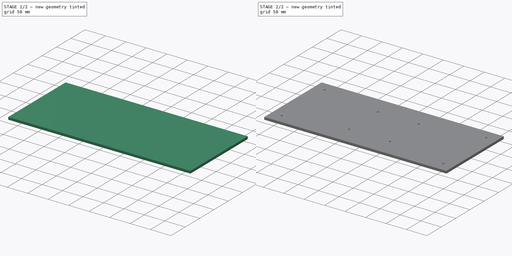
[diagram: build sequence overview — one tinted view per stage of 2, left to right]
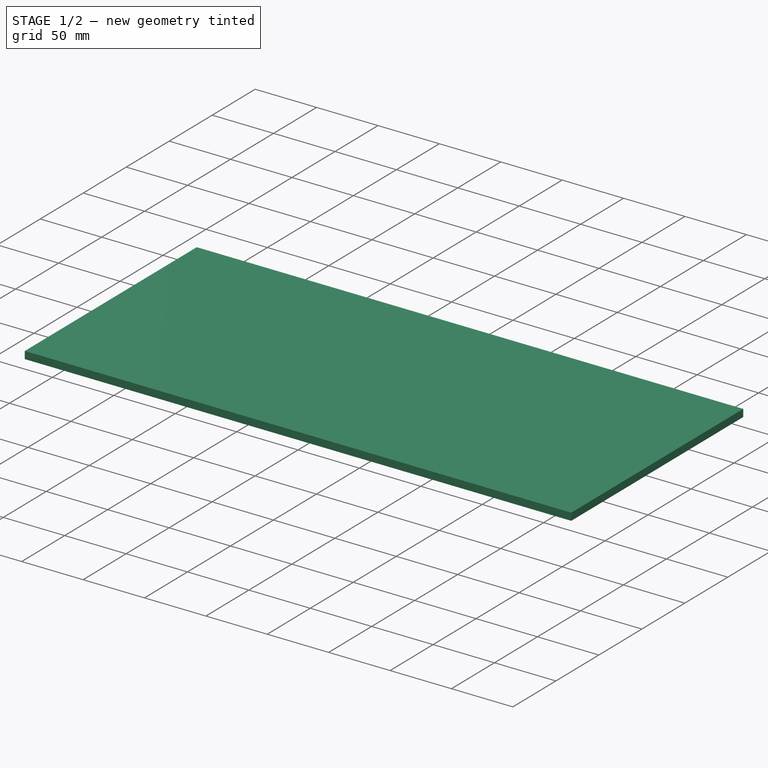
[diagram: stage 1 of 2 — iso view after this stage's code; geometry added in this stage tinted green]
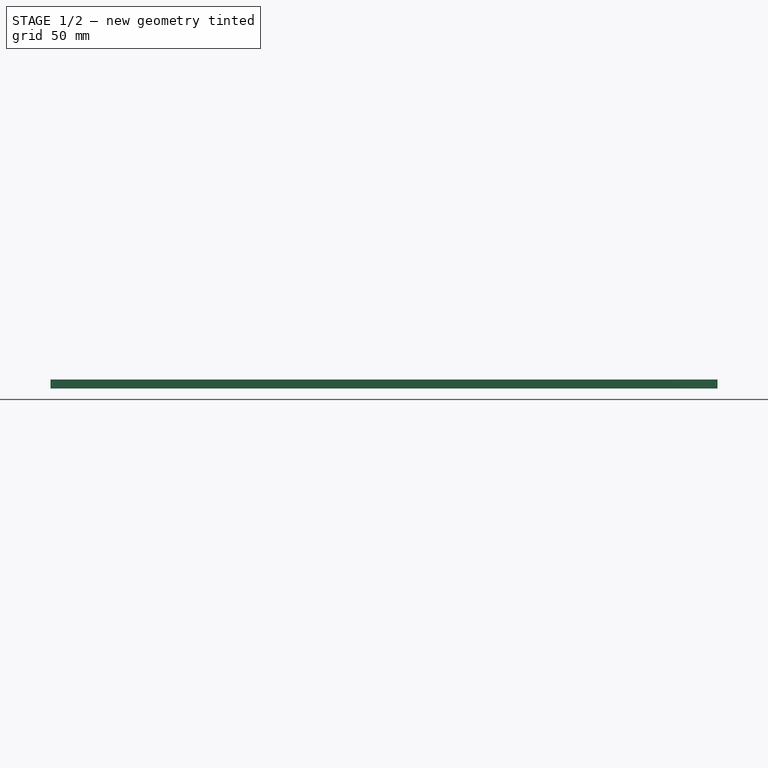
[diagram: stage 1 of 2 — front view after this stage's code; geometry added in this stage tinted green]
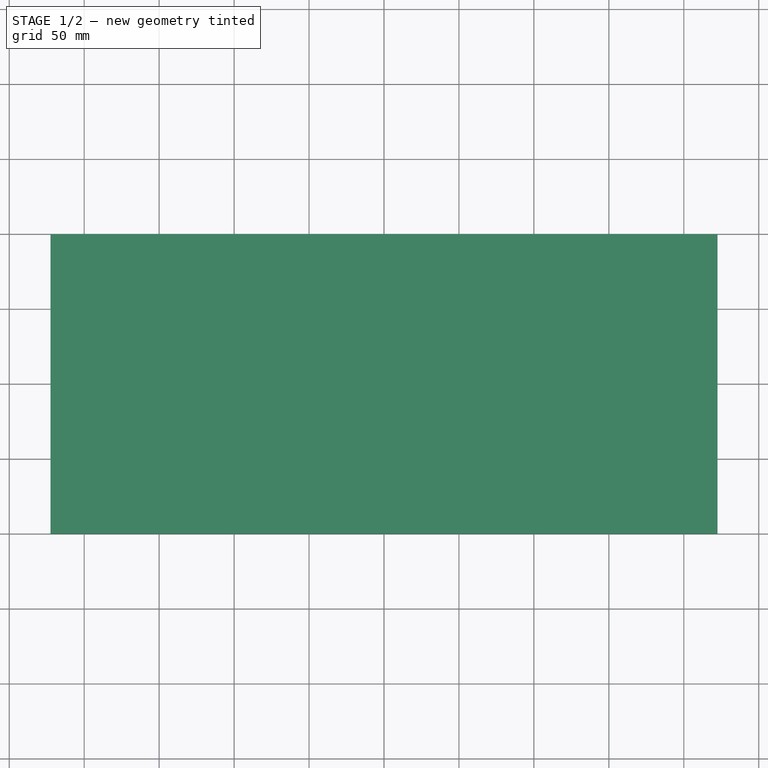
[diagram: stage 1 of 2 — top view after this stage's code; geometry added in this stage tinted green]
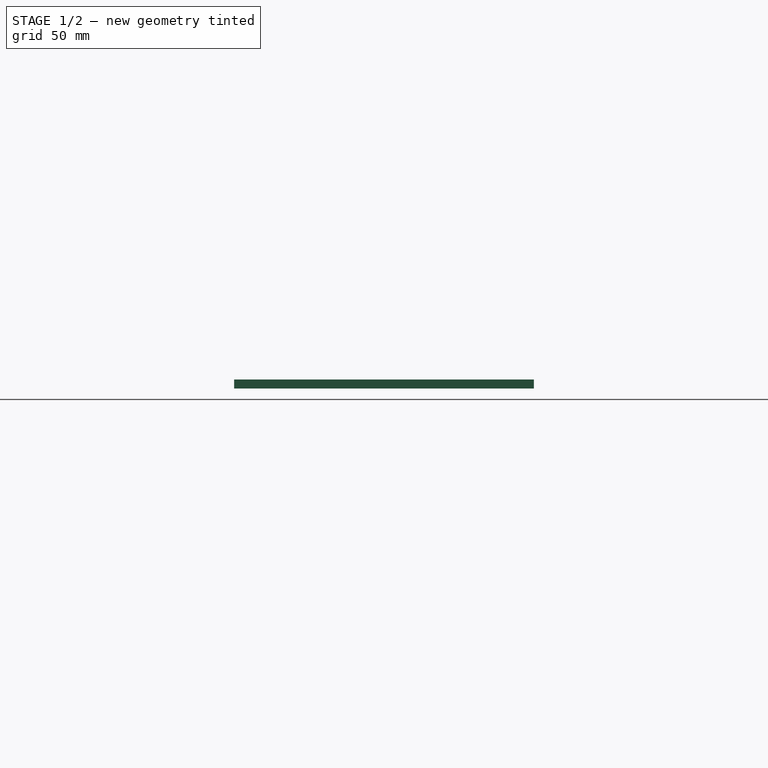
[diagram: stage 1 of 2 — right view after this stage's code; geometry added in this stage tinted green]
FCSTD DOCUMENT  (FreeCAD 0.20R29603 (Git))
Label: flight_case_monitor
License: All rights reserved
LicenseURL: http://en.wikipedia.org/wiki/All_rights_reserved
objects: PartDesign::CoordinateSystem×5, PartDesign::Plane×4, Sketcher::SketchObject×4, App::DocumentObjectGroup×3, App::Part×3, PartDesign::Pad×2, PartDesign::Pocket×2, PartDesign::Body×2, App::FeaturePython×1
note: 23 computed .brp shape members not serialized (recipe doc carries the construction recipe); baked Part::Feature solids carry a one-line shape summary decoded from their .brp

FEATURE [PartDesign::CoordinateSystem] LCS_Origin
  AttacherType = Attacher::AttachEngine3D
  MapMode = 2
  Support = -> [X_Axis]
FEATURE [App::DocumentObjectGroup] Constraints
FEATURE [App::FeaturePython] Variables  # WARN: FeaturePython — macro-defined, semantics opaque (R4)
  Type = App::PropertyContainer
FEATURE [App::DocumentObjectGroup] Configurations
FEATURE [App::Part] Model
  AssemblyType = Part::Link
  Group = -> [LCS_Origin,Constraints,Variables,Configurations]
  Origin = -> Origin
  Type = Assembly
FEATURE [PartDesign::CoordinateSystem] LCS_0
  AttacherType = Attacher::AttachEngine3D
  MapMode = 2
  Support = -> [X_Axis001]
FEATURE [PartDesign::CoordinateSystem] LCS_0001
  AttacherType = Attacher::AttachEngine3D
  MapMode = 2
  Support = -> [X_Axis002]
FEATURE [PartDesign::Plane] DatumPlane
  Length = 60
  MapMode = 5
  ResizeMode = 0
  Support = -> [XY_Plane002]
  Width = 60
FEATURE [PartDesign::Plane] DatumPlane001
  AttachmentOffset = pos=(0,0,6) rot=(0,0,1;0rad)
  Length = 60
  MapMode = 5
  Placement = pos=(0,0,6) rot=(0,0,1;0rad)
  ResizeMode = 0
  Support = -> [XY_Plane002]
  Width = 60
FEATURE [Sketcher::SketchObject] Sketch  label="Monitor_Plate_Body_Panel_Sketch"
  FullyConstrained = true
  MapMode = 5
  Support = -> [DatumPlane]
  sketch-geometry (4):
    g0: LineSegment StartX=-222.5 StartY=100 StartZ=0 EndX=222.5 EndY=100 EndZ=0
    g1: LineSegment StartX=222.5 StartY=100 StartZ=0 EndX=222.5 EndY=-100 EndZ=0
    g2: LineSegment StartX=222.5 StartY=-100 StartZ=0 EndX=-222.5 EndY=-100 EndZ=0
    g3: LineSegment StartX=-222.5 StartY=-100 StartZ=0 EndX=-222.5 EndY=100 EndZ=0
  constraints (10):
    c: Coincident(g0,g1)
    c: Coincident(g1,g2)
    c: Coincident(g2,g3)
    c: Coincident(g3,g0)
    c: Horizontal(g2)
    c: Vertical(g3)
    c: Symmetric(g0,g1,g-1)
    c: Symmetric(g0,g0,g-2)
    c: DistanceX(g0,g0) = 445  'width'
    c: DistanceY(g1,g1) = 200  'height'
FEATURE [PartDesign::Pad] Pad  label="Monitor_Plate_Body_Panel"
  Direction = (0,0,1)
  Length = 10
  Length2 = 10
  Profile = -> Sketch
  ReferenceAxis = -> Sketch [N_Axis]
  Type = 3
  UpToFace = -> DatumPlane001
FEATURE [PartDesign::Body] Monitor_Plate_Body
  Group = -> [LCS_0001,DatumPlane,DatumPlane001,Sketch,Pad,Sketch001,Pocket,Sketch002,Pocket001]
  Origin = -> Origin002
  Tip = -> Pocket001
FEATURE [App::Part] Monitor_Plate
  Group = -> [LCS_0,Monitor_Plate_Body]
  Origin = -> Origin001
FEATURE [PartDesign::CoordinateSystem] LCS_0002
  AttacherType = Attacher::AttachEngine3D
  MapMode = 2
  Support = -> [X_Axis003]
FEATURE [PartDesign::CoordinateSystem] LCS_0003
  AttacherType = Attacher::AttachEngine3D
  MapMode = 2
  Support = -> [X_Axis004]
FEATURE [PartDesign::Plane] DatumPlane002
  Length = 60
  MapMode = 5
  ResizeMode = 0
  Support = -> [XY_Plane004]
  Width = 60
FEATURE [PartDesign::Plane] DatumPlane003
  AttachmentOffset = pos=(0,0,3) rot=(0,0,1;0rad)
  Length = 60
  MapMode = 5
  Placement = pos=(0,0,3) rot=(0,0,1;0rad)
  ResizeMode = 0
  Support = -> [XY_Plane004]
  Width = 60
FEATURE [Sketcher::SketchObject] Sketch003
  FullyConstrained = true
  MapMode = 5
  Support = -> [DatumPlane002]
  sketch-geometry (10):
    g0: Circle CenterX=0 CenterY=0 CenterZ=0 NormalX=0 NormalY=0 NormalZ=1 AngleXU=0 Radius=3
    g1: LineSegment StartX=18.4776 StartY=-7.65367 StartZ=0 EndX=18.4776 EndY=7.65367 EndZ=0
    g2: LineSegment StartX=18.4776 StartY=7.65367 StartZ=0 EndX=7.65367 EndY=18.4776 EndZ=0
    g3: LineSegment StartX=7.65367 StartY=18.4776 StartZ=0 EndX=-7.65367 EndY=18.4776 EndZ=0
    g4: LineSegment StartX=-7.65367 StartY=18.4776 StartZ=0 EndX=-18.4776 EndY=7.65367 EndZ=0
    g5: LineSegment StartX=-18.4776 StartY=7.65367 StartZ=0 EndX=-18.4776 EndY=-7.65367 EndZ=0
    g6: LineSegment StartX=-18.4776 StartY=-7.65367 StartZ=0 EndX=-7.65367 EndY=-18.4776 EndZ=0
    g7: LineSegment StartX=-7.65367 StartY=-18.4776 StartZ=0 EndX=7.65367 EndY=-18.4776 EndZ=0
    g8: LineSegment StartX=7.65367 StartY=-18.4776 StartZ=0 EndX=18.4776 EndY=-7.65367 EndZ=0
    g9: Circle CenterX=0 CenterY=0 CenterZ=0 NormalX=0 NormalY=0 NormalZ=1 AngleXU=0 Radius=20
  constraints (22):
    c: Coincident(g1,g2)
    c: Coincident(g2,g3)
    c: Coincident(g3,g4)
    c: Coincident(g4,g5)
    c: Coincident(g5,g6)
    c: Coincident(g6,g7)
    c: Coincident(g7,g8)
    c: Coincident(g8,g1)
    c: Equal(g1, g2-g8) x7
    c: PointOnObject(g1,g9)
    c: PointOnObject(g2,g9)
    c: PointOnObject(g3,g9)
    c: PointOnObject(g4,g9)
    c: PointOnObject(g5,g9)
    c: PointOnObject(g6,g9)
    c: PointOnObject(g7,g9)
    c: PointOnObject(g8,g9)
    c: Coincident(g9,g0)
    c: Vertical(g5)
    c: Coincident(g0,g-1)
    c: Diameter(g9) = 40  'outer_diameter'
    c: Diameter(g0) = 6  'inner_diameter'
FEATURE [PartDesign::Pad] Pad001
  Direction = (0,0,1)
  Length = 10
  Length2 = 10
  Profile = -> Sketch003
  ReferenceAxis = -> Sketch003 [N_Axis]
  Type = 3
  UpToFace = -> DatumPlane003 [Plane]
FEATURE [PartDesign::Body] Monitor_Mount_Washer_Body
  Group = -> [LCS_0003,DatumPlane002,DatumPlane003,Sketch003,Pad001]
  Origin = -> Origin004
  Tip = -> Pad001
FEATURE [App::Part] Monitor_Mount_Washer
  Group = -> [LCS_0002,Monitor_Mount_Washer_Body]
  Origin = -> Origin003
FEATURE [App::DocumentObjectGroup] Parts
  Group = -> [Monitor_Plate,Monitor_Mount_Washer]
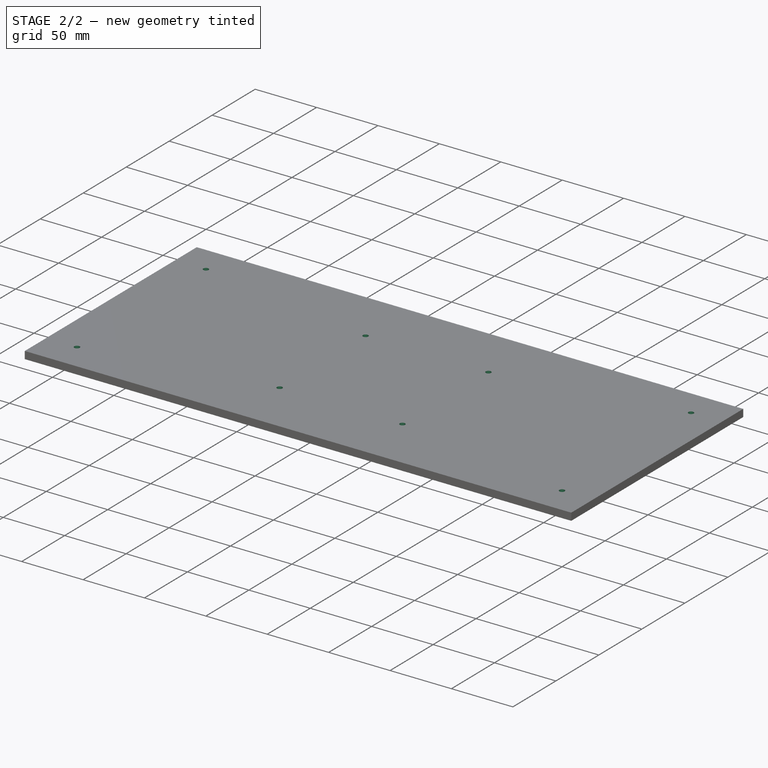
[diagram: stage 2 of 2 — iso view after this stage's code; geometry added in this stage tinted green]
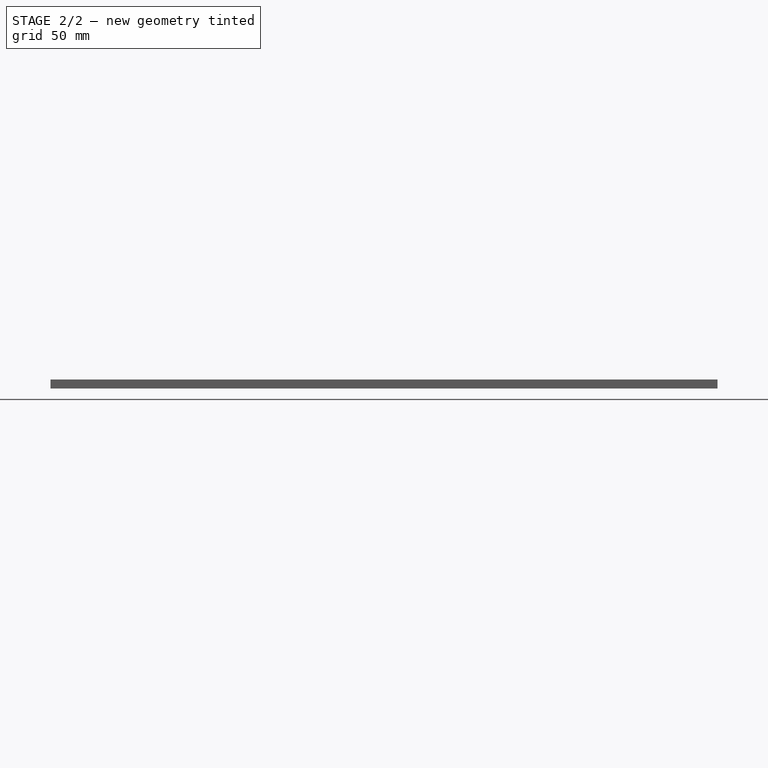
[diagram: stage 2 of 2 — front view after this stage's code; geometry added in this stage tinted green]
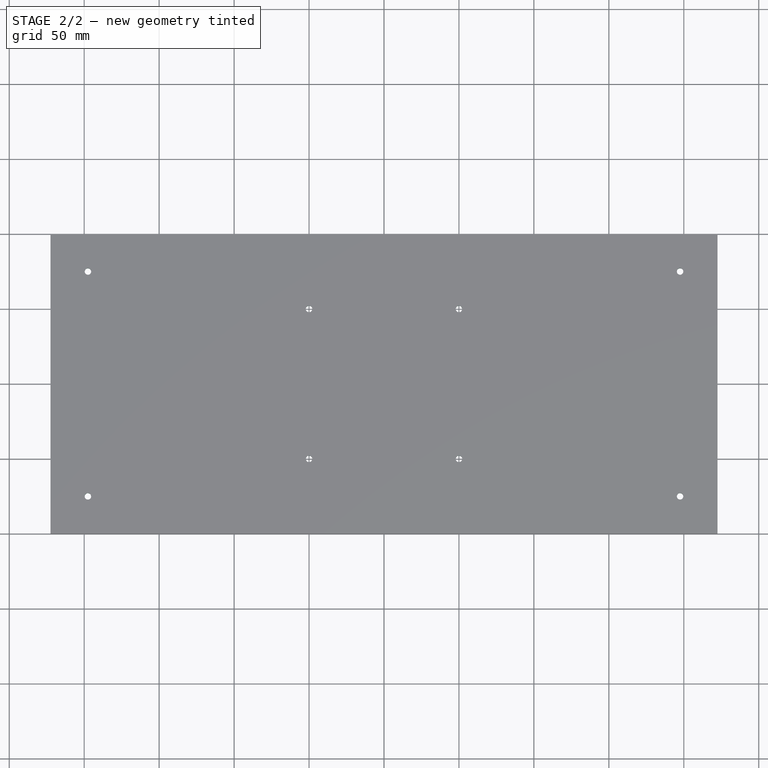
[diagram: stage 2 of 2 — top view after this stage's code; geometry added in this stage tinted green]
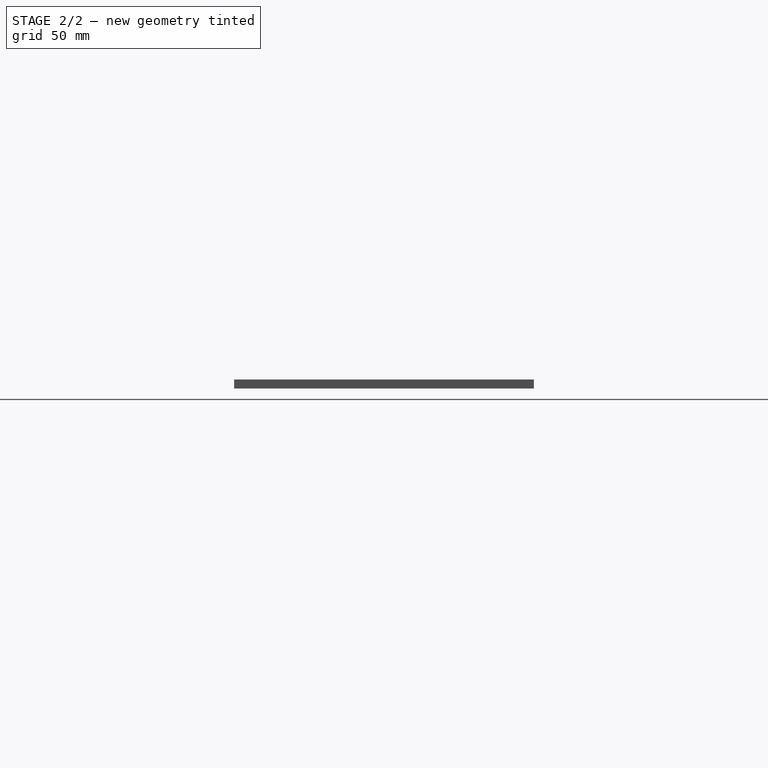
[diagram: stage 2 of 2 — right view after this stage's code; geometry added in this stage tinted green]
FEATURE [Sketcher::SketchObject] Sketch001  label="Monitor_Plate_Body_Monitor_Mounting_Holes_Sketch"
  FullyConstrained = true
  MapMode = 5
  Placement = pos=(0,0,6) rot=(0,0,1;0rad)
  Support = -> [DatumPlane001]
  sketch-geometry (8):
    g0: LineSegment StartX=-50 StartY=50 StartZ=0 EndX=50 EndY=50 EndZ=0
    g1: LineSegment StartX=50 StartY=50 StartZ=0 EndX=50 EndY=-50 EndZ=0
    g2: LineSegment StartX=50 StartY=-50 StartZ=0 EndX=-50 EndY=-50 EndZ=0
    g3: LineSegment StartX=-50 StartY=-50 StartZ=0 EndX=-50 EndY=50 EndZ=0
    g4: Circle CenterX=-50 CenterY=50 CenterZ=0 NormalX=0 NormalY=0 NormalZ=1 AngleXU=0 Radius=2.15
    g5: Circle CenterX=50 CenterY=50 CenterZ=0 NormalX=0 NormalY=0 NormalZ=1 AngleXU=0 Radius=2.15
    g6: Circle CenterX=-50 CenterY=-50 CenterZ=0 NormalX=0 NormalY=0 NormalZ=1 AngleXU=0 Radius=2.15
    g7: Circle CenterX=50 CenterY=-50 CenterZ=0 NormalX=0 NormalY=0 NormalZ=1 AngleXU=0 Radius=2.15
  constraints (18):
    c: Coincident(g0,g1)
    c: Coincident(g1,g2)
    c: Coincident(g2,g3)
    c: Coincident(g3,g0)
    c: Horizontal(g2)
    c: Vertical(g3)
    c: Coincident(g4,g0)
    c: Coincident(g5,g0)
    c: Coincident(g6,g2)
    c: Coincident(g7,g1)
    c: Equal(g4,g5)
    c: Equal(g5,g6)
    c: Equal(g6,g7)
    c: Diameter(g6) = 4.3  'diameter'
    c: Symmetric(g5,g7,g-1)
    c: Symmetric(g5,g4,g-2)
    c: DistanceX(g0,g0) = 100  'width'
    c: DistanceY(g1,g1) = 100  'height'
FEATURE [PartDesign::Pocket] Pocket  label="Monitor_Plate_Body_Monitor_Mounting_Holes"
  BaseFeature = -> Pad
  Direction = (0,0,-1)
  Length = 0
  Length2 = 5
  Profile = -> Sketch001
  ReferenceAxis = -> Sketch001 [N_Axis]
  Type = 3
  UpToFace = -> DatumPlane [Plane]
FEATURE [Sketcher::SketchObject] Sketch002  label="Monitor_Plate_Body_Case_Mounting_Holes_Sketch"
  FullyConstrained = true
  MapMode = 5
  Placement = pos=(0,0,6) rot=(0,0,1;0rad)
  Support = -> [DatumPlane001]
  expr: Constraints[8] = <<Monitor_Plate_Body_Panel_Sketch>>.Constraints.height - 50mm
  expr: Constraints[9] = <<Monitor_Plate_Body_Panel_Sketch>>.Constraints.width - 50mm
  sketch-geometry (8):
    g0: LineSegment StartX=-197.5 StartY=75 StartZ=0 EndX=197.5 EndY=75 EndZ=0
    g1: LineSegment StartX=197.5 StartY=75 StartZ=0 EndX=197.5 EndY=-75 EndZ=0
    g2: LineSegment StartX=197.5 StartY=-75 StartZ=0 EndX=-197.5 EndY=-75 EndZ=0
    g3: LineSegment StartX=-197.5 StartY=-75 StartZ=0 EndX=-197.5 EndY=75 EndZ=0
    g4: Circle CenterX=-197.5 CenterY=75 CenterZ=0 NormalX=0 NormalY=0 NormalZ=1 AngleXU=0 Radius=2.15
    g5: Circle CenterX=-197.5 CenterY=-75 CenterZ=0 NormalX=0 NormalY=0 NormalZ=1 AngleXU=0 Radius=2.15
    g6: Circle CenterX=197.5 CenterY=-75 CenterZ=0 NormalX=0 NormalY=0 NormalZ=1 AngleXU=0 Radius=2.15
    g7: Circle CenterX=197.5 CenterY=75 CenterZ=0 NormalX=0 NormalY=0 NormalZ=1 AngleXU=0 Radius=2.15
  constraints (18):
    c: Coincident(g0,g1)
    c: Coincident(g1,g2)
    c: Coincident(g2,g3)
    c: Coincident(g3,g0)
    c: Horizontal(g2)
    c: Vertical(g3)
    c: Symmetric(g0,g1,g-1)
    c: Symmetric(g0,g0,g-2)
    c: DistanceY(g1,g1) = 150
    c: DistanceX(g0,g0) = 395
    c: Coincident(g4,g0)
    c: Coincident(g5,g2)
    c: Coincident(g6,g1)
    c: Coincident(g7,g0)
    c: Equal(g4,g5)
    c: Equal(g5,g6)
    c: Equal(g6,g7)
    c: Diameter(g5) = 4.3  'diameter'
FEATURE [PartDesign::Pocket] Pocket001  label="Monitor_Plate_Body_Case_Mounting_Holes"
  BaseFeature = -> Pocket
  Direction = (0,0,-1)
  Length = 0
  Length2 = 5
  Profile = -> Sketch002
  ReferenceAxis = -> Sketch002 [N_Axis]
  Type = 3
  UpToFace = -> DatumPlane [Plane]
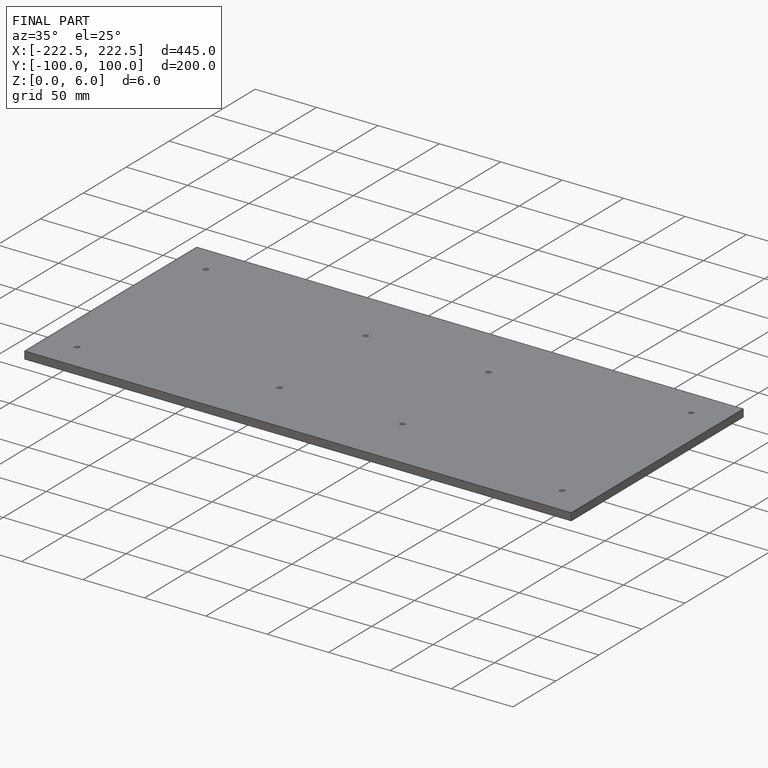
[diagram: finished part — iso view with bounding-box wireframe]
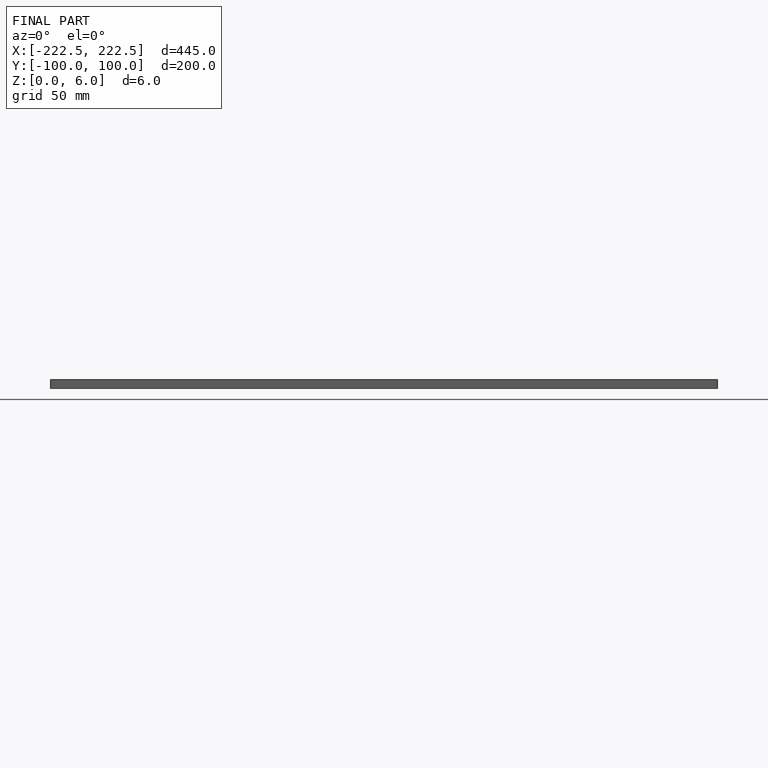
[diagram: finished part — front view with bounding-box wireframe]
